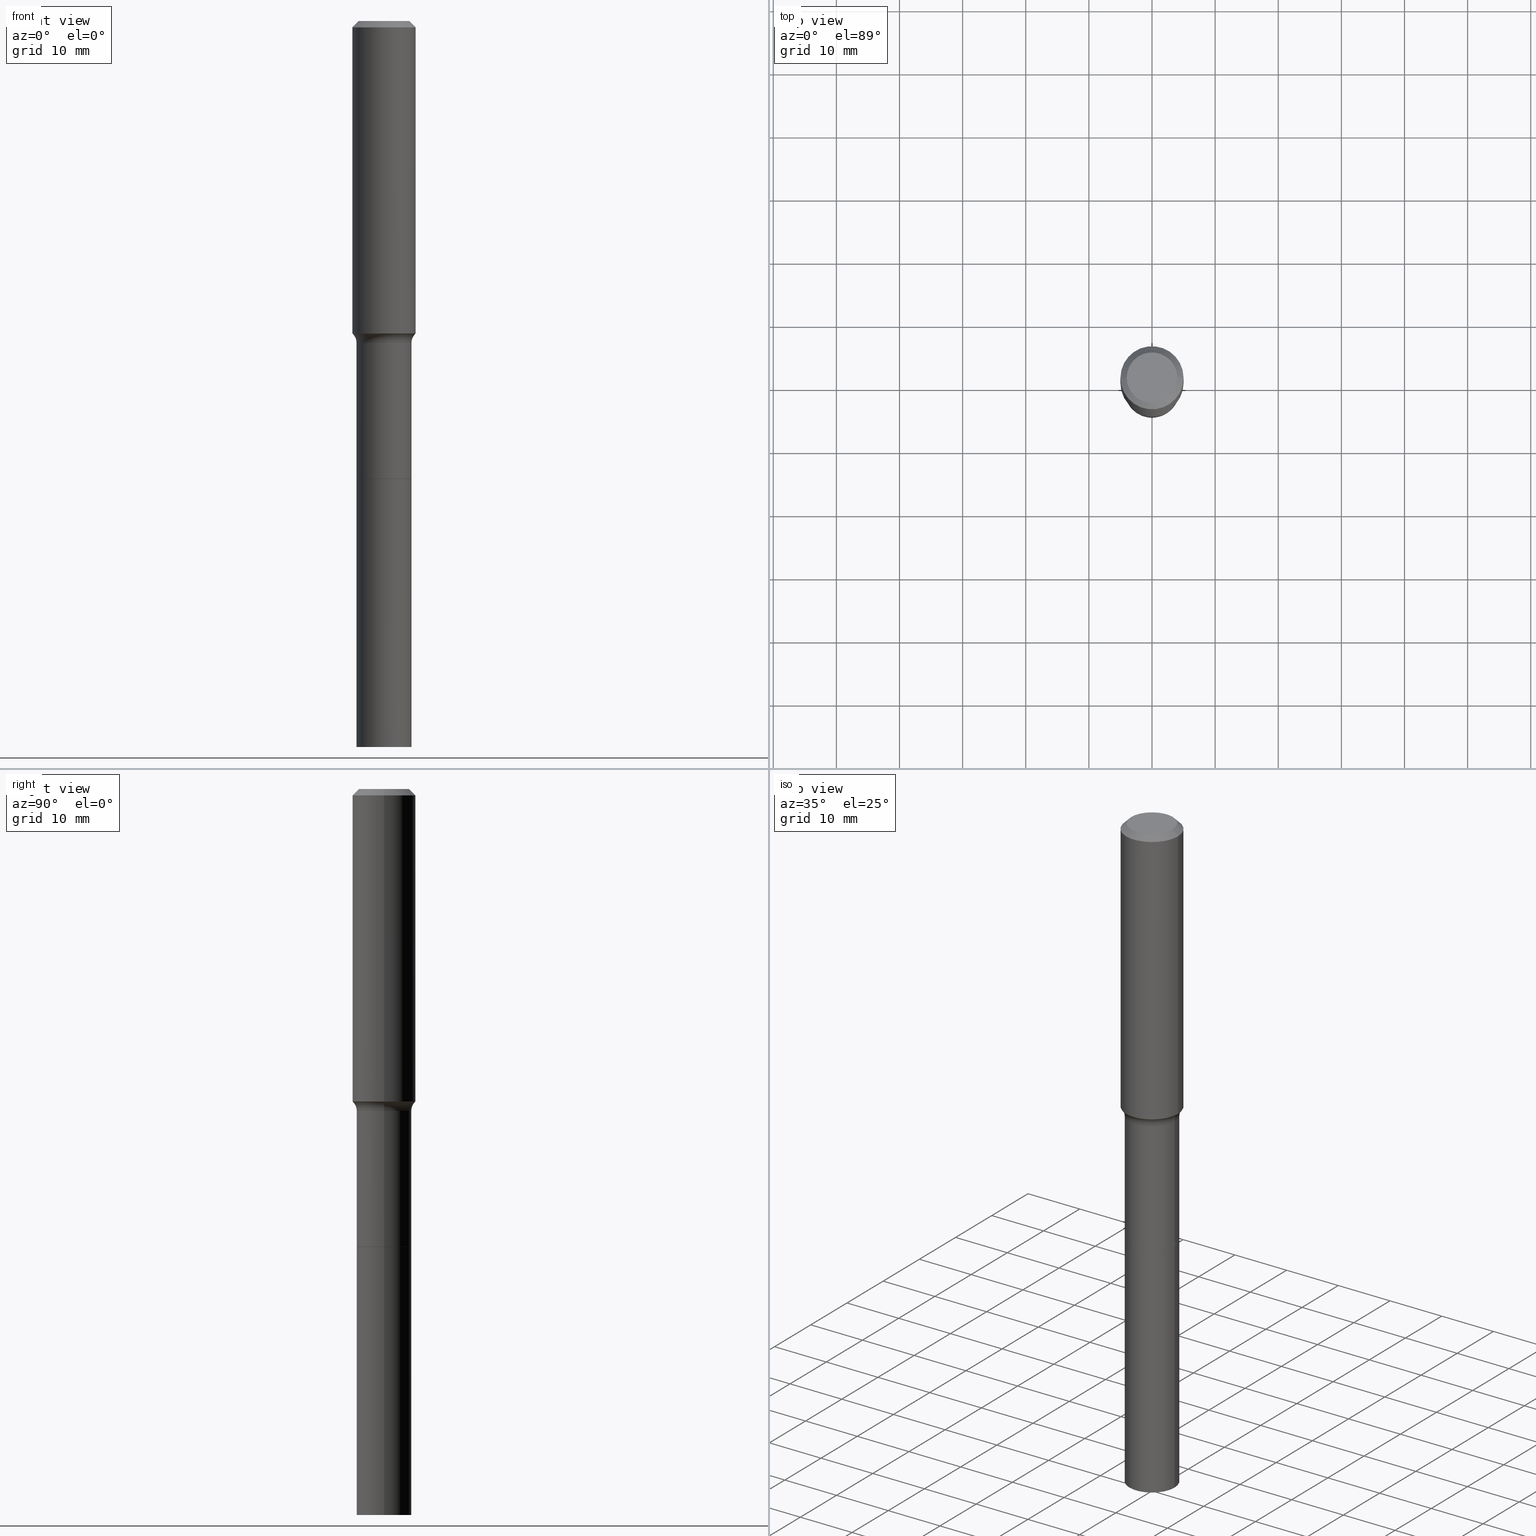
[diagram: canonical four-view strip — front | top / right | iso, engineering-drawing reading convention]
A machine part, canonical four-view strip (front | top / right | iso — engineering-drawing reading convention). The complete STEP part file that produces these views, byte-faithful:
ISO-10303-21;
HEADER;
FILE_DESCRIPTION (( 'STEP AP203' ),
    '1' );
FILE_NAME ('67875.STEP',
    '2025-04-01T15:31:56',
    ( '' ),
    ( '' ),
    'SwSTEP 2.0',
    'SolidWorks 2024',
    '' );
FILE_SCHEMA (( 'CONFIG_CONTROL_DESIGN' ));
ENDSEC;

DATA;
#1 = DIRECTION ( 'NONE',  ( -1.000000000000000000, 6.982962677686265922E-15, 0.000000000000000000 ) ) ;
#2 = VERTEX_POINT ( 'NONE', #33 ) ;
#3 = EDGE_CURVE ( 'NONE', #72, #116, #423, .T. ) ;
#4 = CARTESIAN_POINT ( 'NONE',  ( 0.1712500000000000133, -1.116086924774599207E-14, -2.854099999999999415 ) ) ;
#5 = DIRECTION ( 'NONE',  ( 0.7071067811868130271, -2.468850131085038979E-15, 0.7071067811862817853 ) ) ;
#6 = LINE ( 'NONE', #200, #403 ) ;
#7 = ADVANCED_BREP_SHAPE_REPRESENTATION ( '67875', ( #94, #86, #93 ), #299 ) ;
#8 = AXIS2_PLACEMENT_3D ( 'NONE', #188, #434, #1 ) ;
#9 = CARTESIAN_POINT ( 'NONE',  ( -0.1707500000000000129, -8.750881681377158273E-15, -2.854599999999999138 ) ) ;
#10 = ORIENTED_EDGE ( 'NONE', *, *, #194, .F. ) ;
#11 = LOCAL_TIME ( 11, 31, 56.00000000000000000, #212 ) ;
#12 = EDGE_CURVE ( 'NONE', #2, #353, #268, .T. ) ;
#13 = CYLINDRICAL_SURFACE ( 'NONE', #264, 0.1968500000000001082 ) ;
#14 = DIMENSIONAL_EXPONENTS ( 1.000000000000000000, 0.000000000000000000, 0.000000000000000000, 0.000000000000000000, 0.000000000000000000, 0.000000000000000000, 0.000000000000000000 ) ;
#15 = PERSON_AND_ORGANIZATION ( #405, #371 ) ;
#16 = EDGE_CURVE ( 'NONE', #332, #26, #285, .T. ) ;
#17 = CARTESIAN_POINT ( 'NONE',  ( -0.1927417038704664354, -5.449490996447267040E-15, -1.953040131194999862 ) ) ;
#18 = FACE_OUTER_BOUND ( 'NONE', #80, .T. ) ;
#19 = LINE ( 'NONE', #418, #84 ) ;
#20 = AXIS2_PLACEMENT_3D ( 'NONE', #486, #128, #281 ) ;
#21 = VERTEX_POINT ( 'NONE', #195 ) ;
#22 = EDGE_CURVE ( 'NONE', #40, #208, #443, .T. ) ;
#23 = CARTESIAN_POINT ( 'NONE',  ( 4.765324940588792328E-29, -6.803621073189836880E-15, -1.948634522974172167 ) ) ;
#24 = EDGE_LOOP ( 'NONE', ( #350, #378 ) ) ;
#25 = AXIS2_PLACEMENT_3D ( 'NONE', #30, #207, #203 ) ;
#26 = VERTEX_POINT ( 'NONE', #272 ) ;
#27 = EDGE_LOOP ( 'NONE', ( #10, #509, #504, #186 ) ) ;
#28 = AXIS2_PLACEMENT_3D ( 'NONE', #301, #292, #456 ) ;
#29 = EDGE_CURVE ( 'NONE', #21, #2, #319, .T. ) ;
#30 = CARTESIAN_POINT ( 'NONE',  ( 1.107210456688382298E-28, -1.580803090974622389E-14, -4.527599999999999625 ) ) ;
#31 = ORIENTED_EDGE ( 'NONE', *, *, #411, .F. ) ;
#32 = CARTESIAN_POINT ( 'NONE',  ( 4.909523175297278955E-29, -7.009497935861498019E-15, -2.007599999999999607 ) ) ;
#33 = CARTESIAN_POINT ( 'NONE',  ( 0.1968500000000002470, -8.178217276292379277E-15, -1.948634522974172167 ) ) ;
#34 = CARTESIAN_POINT ( 'NONE',  ( -0.1968500000000000250, 1.237136582792286225E-15, -0.03937000000000027283 ) ) ;
#35 = DIRECTION ( 'NONE',  ( -2.445468806185136597E-29, 3.491481338843145583E-15, 1.000000000000000000 ) ) ;
#36 = DIRECTION ( 'NONE',  ( -2.445468806185136597E-29, 3.491481338843145583E-15, 1.000000000000000000 ) ) ;
#37 = DIRECTION ( 'NONE',  ( -0.7071067811865451302, 2.468850131082231817E-15, -0.7071067811865499042 ) ) ;
#38 = EDGE_CURVE ( 'NONE', #208, #65, #391, .T. ) ;
#39 = DIRECTION ( 'NONE',  ( -1.000000000000000000, 6.982962677686265922E-15, -4.876176775795935793E-29 ) ) ;
#40 = VERTEX_POINT ( 'NONE', #163 ) ;
#41 = CYLINDRICAL_SURFACE ( 'NONE', #45, 0.1968500000000001082 ) ;
#42 = CARTESIAN_POINT ( 'NONE',  ( -0.1712500000000002909, -1.167060233481475528E-14, -4.527599999999999625 ) ) ;
#43 = CARTESIAN_POINT ( 'NONE',  ( 6.980835254136088366E-29, -9.966782629861639450E-15, -2.854599999999999138 ) ) ;
#44 = ORIENTED_EDGE ( 'NONE', *, *, #22, .F. ) ;
#45 = AXIS2_PLACEMENT_3D ( 'NONE', #236, #155, #232 ) ;
#46 = ORIENTED_EDGE ( 'NONE', *, *, #380, .F. ) ;
#47 = PERSON_AND_ORGANIZATION ( #405, #371 ) ;
#48 = VECTOR ( 'NONE', #365, 39.37007874015748143 ) ;
#49 = AXIS2_PLACEMENT_3D ( 'NONE', #157, #305, #115 ) ;
#50 = PERSON_AND_ORGANIZATION ( #405, #371 ) ;
#51 = EDGE_CURVE ( 'NONE', #258, #65, #485, .T. ) ;
#52 = VECTOR ( 'NONE', #257, 39.37007874015748143 ) ;
#53 = CC_DESIGN_SECURITY_CLASSIFICATION ( #290, ( #214 ) ) ;
#54 = CARTESIAN_POINT ( 'NONE',  ( 6.980835254136088366E-29, -9.966782629861639450E-15, -2.854599999999999138 ) ) ;
#55 = CARTESIAN_POINT ( 'NONE',  ( 0.1968500000000000250, -1.512055823412797189E-15, -0.03937000000000027283 ) ) ;
#56 = CONICAL_SURFACE ( 'NONE', #8, 0.1968500000000000250, 0.7853981633974449483 ) ;
#57 = EDGE_CURVE ( 'NONE', #26, #332, #333, .T. ) ;
#58 = EDGE_LOOP ( 'NONE', ( #505, #177, #303, #44 ) ) ;
#59 = APPLICATION_PROTOCOL_DEFINITION ( 'international standard', 'config_control_design', 1994, #101 ) ;
#60 = LINE ( 'NONE', #336, #506 ) ;
#61 = LOCAL_TIME ( 11, 31, 56.00000000000000000, #141 ) ;
#62 = EDGE_LOOP ( 'NONE', ( #326, #473, #374, #404 ) ) ;
#63 = DESIGN_CONTEXT ( 'detailed design', #351, 'design' ) ;
#64 = DIRECTION ( 'NONE',  ( 1.000000000000000000, -6.982962677686262766E-15, 0.000000000000000000 ) ) ;
#65 = VERTEX_POINT ( 'NONE', #158 ) ;
#66 = CARTESIAN_POINT ( 'NONE',  ( 4.776098718065099185E-29, -6.819003172079109959E-15, -1.953040131194999862 ) ) ;
#67 = AXIS2_PLACEMENT_3D ( 'NONE', #312, #480, #316 ) ;
#68 = EDGE_LOOP ( 'NONE', ( #385, #300 ) ) ;
#69 = FACE_OUTER_BOUND ( 'NONE', #230, .T. ) ;
#70 = EDGE_CURVE ( 'NONE', #76, #412, #476, .T. ) ;
#71 = CONICAL_SURFACE ( 'NONE', #98, 0.1707500000000000129, 0.7853981633978239785 ) ;
#72 = VERTEX_POINT ( 'NONE', #406 ) ;
#73 = LOCAL_TIME ( 11, 31, 56.00000000000000000, #206 ) ;
#74 =( CONVERSION_BASED_UNIT ( 'INCH', #270 ) LENGTH_UNIT ( ) NAMED_UNIT ( #14 ) );
#75 = DIRECTION ( 'NONE',  ( 2.438088387897960049E-29, -3.491481338843145188E-15, -1.000000000000000000 ) ) ;
#76 = VERTEX_POINT ( 'NONE', #42 ) ;
#77 = DIRECTION ( 'NONE',  ( -2.445468806185136597E-29, 3.491481338843145583E-15, 1.000000000000000000 ) ) ;
#78 = FACE_OUTER_BOUND ( 'NONE', #138, .T. ) ;
#79 = CC_DESIGN_PERSON_AND_ORGANIZATION_ASSIGNMENT ( #373, #180, ( #214 ) ) ;
#80 = EDGE_LOOP ( 'NONE', ( #419, #204, #282, #343 ) ) ;
#81 = SECURITY_CLASSIFICATION_LEVEL ( 'unclassified' ) ;
#82 = LINE ( 'NONE', #150, #253 ) ;
#83 = DIRECTION ( 'NONE',  ( 0.6819983600624930364, -2.208861293262419399E-15, 0.7313537016191755669 ) ) ;
#84 = VECTOR ( 'NONE', #145, 39.37007874015748143 ) ;
#85 = DIRECTION ( 'NONE',  ( 2.445468806185136597E-29, -3.491481338843145583E-15, -1.000000000000000000 ) ) ;
#86 = MANIFOLD_SOLID_BREP ( 'Body-Move/Copy2[2]', #366 ) ;
#87 = CARTESIAN_POINT ( 'NONE',  ( 6.980835254136088366E-29, -9.966782629861639450E-15, -2.854599999999999138 ) ) ;
#88 = DIRECTION ( 'NONE',  ( 1.000000000000000000, -6.982962677686262766E-15, 0.000000000000000000 ) ) ;
#89 = FACE_OUTER_BOUND ( 'NONE', #58, .T. ) ;
#90 = CARTESIAN_POINT ( 'NONE',  ( 9.627810689950950651E-31, -1.374596203102555808E-16, -0.03937000000000027283 ) ) ;
#91 = VECTOR ( 'NONE', #83, 39.37007874015748143 ) ;
#92 = CC_DESIGN_PERSON_AND_ORGANIZATION_ASSIGNMENT ( #190, #394, ( #290 ) ) ;
#93 = AXIS2_PLACEMENT_3D ( 'NONE', #139, #103, #221 ) ;
#94 = MANIFOLD_SOLID_BREP ( 'Body-Move/Copy2[1]', #359 ) ;
#95 = EDGE_CURVE ( 'NONE', #72, #353, #507, .T. ) ;
#96 = CIRCLE ( 'NONE', #67, 0.1712500000000002909 ) ;
#97 = MECHANICAL_CONTEXT ( 'NONE', #101, 'mechanical' ) ;
#98 = AXIS2_PLACEMENT_3D ( 'NONE', #210, #249, #165 ) ;
#99 =( NAMED_UNIT ( * ) SI_UNIT ( $, .STERADIAN. ) SOLID_ANGLE_UNIT ( ) );
#100 = ADVANCED_FACE ( 'NONE', ( #381 ), #56, .T. ) ;
#101 = APPLICATION_CONTEXT ( 'configuration controlled 3d designs of mechanical parts and assemblies' ) ;
#102 = ORIENTED_EDGE ( 'NONE', *, *, #420, .F. ) ;
#103 = DIRECTION ( 'NONE',  ( 0.000000000000000000, 0.000000000000000000, 1.000000000000000000 ) ) ;
#104 = FACE_OUTER_BOUND ( 'NONE', #24, .T. ) ;
#105 = ORIENTED_EDGE ( 'NONE', *, *, #51, .F. ) ;
#106 = DATE_AND_TIME ( #296, #61 ) ;
#107 = DIRECTION ( 'NONE',  ( -2.445468806185136597E-29, 3.491481338843145583E-15, 1.000000000000000000 ) ) ;
#108 = CIRCLE ( 'NONE', #134, 0.1927417038704664354 ) ;
#109 = ORIENTED_EDGE ( 'NONE', *, *, #360, .F. ) ;
#110 = DIRECTION ( 'NONE',  ( -6.982962677686266711E-15, -1.000000000000000000, 3.491481338843145583E-15 ) ) ;
#111 = ORIENTED_EDGE ( 'NONE', *, *, #327, .F. ) ;
#112 = ADVANCED_FACE ( 'NONE', ( #469 ), #479, .T. ) ;
#113 = DIRECTION ( 'NONE',  ( 1.000000000000000000, -6.982962677686265133E-15, 0.000000000000000000 ) ) ;
#114 = DIRECTION ( 'NONE',  ( 1.000000000000000000, -6.982962677686262766E-15, 0.000000000000000000 ) ) ;
#115 = DIRECTION ( 'NONE',  ( 1.000000000000000000, -6.982962677686265922E-15, 4.876176775795935793E-29 ) ) ;
#116 = VERTEX_POINT ( 'NONE', #352 ) ;
#117 = DIRECTION ( 'NONE',  ( -2.445468806185136597E-29, 3.491481338843145583E-15, 1.000000000000000000 ) ) ;
#118 = ORIENTED_EDGE ( 'NONE', *, *, #514, .F. ) ;
#119 = TOROIDAL_SURFACE ( 'NONE', #202, 0.2512499999999999178, 0.07999999999999994615 ) ;
#120 = DIRECTION ( 'NONE',  ( 1.000000000000000000, -6.982962677686266711E-15, 4.876176775795935793E-29 ) ) ;
#121 = EDGE_CURVE ( 'NONE', #223, #422, #367, .T. ) ;
#122 = CARTESIAN_POINT ( 'NONE',  ( -0.1712500000000001521, -8.749978194872468576E-15, -2.854599999999999582 ) ) ;
#123 = DIRECTION ( 'NONE',  ( -1.000000000000000000, 7.105427357601005014E-15, 0.000000000000000000 ) ) ;
#124 = CARTESIAN_POINT ( 'NONE',  ( 9.627810689950950651E-31, -1.374596203102555808E-16, -0.03937000000000027283 ) ) ;
#125 = DIRECTION ( 'NONE',  ( -2.445468806185136597E-29, 3.491481338843145583E-15, 1.000000000000000000 ) ) ;
#126 = DIRECTION ( 'NONE',  ( -0.7071067811868130271, 7.493145998871311837E-15, 0.7071067811862817853 ) ) ;
#127 = AXIS2_PLACEMENT_3D ( 'NONE', #124, #85, #244 ) ;
#128 = DIRECTION ( 'NONE',  ( -2.445468806185136597E-29, 3.491481338843145583E-15, 1.000000000000000000 ) ) ;
#129 = EDGE_LOOP ( 'NONE', ( #280, #501, #435, #295 ) ) ;
#130 = APPROVAL_DATE_TIME ( #169, #400 ) ;
#131 = ADVANCED_FACE ( 'NONE', ( #234 ), #508, .F. ) ;
#132 = CALENDAR_DATE ( 2025, 1, 4 ) ;
#133 = AXIS2_PLACEMENT_3D ( 'NONE', #397, #472, #392 ) ;
#134 = AXIS2_PLACEMENT_3D ( 'NONE', #66, #226, #113 ) ;
#135 = DIRECTION ( 'NONE',  ( -2.445468806185136597E-29, 3.491481338843145583E-15, 1.000000000000000000 ) ) ;
#136 = EDGE_CURVE ( 'NONE', #65, #116, #82, .T. ) ;
#137 = AXIS2_PLACEMENT_3D ( 'NONE', #179, #414, #331 ) ;
#138 = EDGE_LOOP ( 'NONE', ( #247, #235 ) ) ;
#139 = CARTESIAN_POINT ( 'NONE',  ( 0.000000000000000000, 0.000000000000000000, 0.000000000000000000 ) ) ;
#140 = EDGE_LOOP ( 'NONE', ( #470, #269, #335, #31 ) ) ;
#141 = COORDINATED_UNIVERSAL_TIME_OFFSET ( 5, 0, .BEHIND. ) ;
#142 = CARTESIAN_POINT ( 'NONE',  ( 6.980835254136090608E-29, -9.966782629861641028E-15, -2.854599999999999582 ) ) ;
#143 = AXIS2_PLACEMENT_3D ( 'NONE', #481, #240, #123 ) ;
#144 = ORIENTED_EDGE ( 'NONE', *, *, #284, .F. ) ;
#145 = DIRECTION ( 'NONE',  ( -2.445468806185136877E-29, 3.491481338843145188E-15, 1.000000000000000000 ) ) ;
#146 = CIRCLE ( 'NONE', #159, 0.1712500000000000133 ) ;
#147 = ADVANCED_FACE ( 'NONE', ( #431 ), #438, .T. ) ;
#148 = ORIENTED_EDGE ( 'NONE', *, *, #16, .T. ) ;
#149 = DIRECTION ( 'NONE',  ( -2.445468806185136597E-29, 3.491481338843145583E-15, 1.000000000000000000 ) ) ;
#150 = CARTESIAN_POINT ( 'NONE',  ( -0.1712499999999999856, 1.216804434989171466E-15, -8.423676342061525262E-30 ) ) ;
#151 = ORIENTED_EDGE ( 'NONE', *, *, #327, .T. ) ;
#152 = VECTOR ( 'NONE', #126, 39.37007874015748854 ) ;
#153 = DIRECTION ( 'NONE',  ( 1.000000000000000000, -6.982962677686265922E-15, 0.000000000000000000 ) ) ;
#154 = DIRECTION ( 'NONE',  ( -2.445468806185136597E-29, 3.491481338843145583E-15, 1.000000000000000000 ) ) ;
#155 = DIRECTION ( 'NONE',  ( -2.445468806185136597E-29, 3.491481338843145583E-15, 1.000000000000000000 ) ) ;
#156 = AXIS2_PLACEMENT_3D ( 'NONE', #256, #218, #372 ) ;
#157 = CARTESIAN_POINT ( 'NONE',  ( 1.335922122911125995E-28, -8.325708785128804196E-16, -2.854599999999999582 ) ) ;
#158 = CARTESIAN_POINT ( 'NONE',  ( -0.1712500000000000133, -7.270462977537686320E-15, -2.854099999999999415 ) ) ;
#159 = AXIS2_PLACEMENT_3D ( 'NONE', #192, #396, #114 ) ;
#160 = ORIENTED_EDGE ( 'NONE', *, *, #95, .F. ) ;
#161 = CARTESIAN_POINT ( 'NONE',  ( 0.1712500000000000133, -1.116261498841541436E-14, -2.854599999999999582 ) ) ;
#162 = DIRECTION ( 'NONE',  ( 1.000000000000000000, -6.982962677686266711E-15, 0.000000000000000000 ) ) ;
#163 = CARTESIAN_POINT ( 'NONE',  ( 0.1707500000000000129, -1.115912350707656977E-14, -2.854599999999999138 ) ) ;
#164 = VECTOR ( 'NONE', #201, 39.37007874015748143 ) ;
#165 = DIRECTION ( 'NONE',  ( 1.000000000000000000, -6.982962677686265922E-15, 0.000000000000000000 ) ) ;
#166 = ADVANCED_FACE ( 'NONE', ( #193 ), #448, .F. ) ;
#167 = CARTESIAN_POINT ( 'NONE',  ( 0.1707500000000000129, -1.115912350707656977E-14, -2.854599999999999138 ) ) ;
#168 = LOCAL_TIME ( 11, 31, 56.00000000000000000, #289 ) ;
#169 = DATE_AND_TIME ( #356, #11 ) ;
#170 = EDGE_CURVE ( 'NONE', #40, #258, #288, .T. ) ;
#171 = APPROVAL_ROLE ( '' ) ;
#172 = AXIS2_PLACEMENT_3D ( 'NONE', #450, #110, #421 ) ;
#173 = CARTESIAN_POINT ( 'NONE',  ( 0.000000000000000000, 0.000000000000000000, 0.000000000000000000 ) ) ;
#174 = ADVANCED_FACE ( 'NONE', ( #78 ), #345, .F. ) ;
#175 = DIRECTION ( 'NONE',  ( -2.445468806185136597E-29, 3.491481338843145583E-15, 1.000000000000000000 ) ) ;
#176 = CONICAL_SURFACE ( 'NONE', #127, 0.1968500000000000250, 0.7853981633974449483 ) ;
#177 = ORIENTED_EDGE ( 'NONE', *, *, #51, .T. ) ;
#178 = APPROVAL_STATUS ( 'not_yet_approved' ) ;
#179 = CARTESIAN_POINT ( 'NONE',  ( -4.713871149261283817E-47, 6.730158695841841775E-33, 1.927594061857935365E-18 ) ) ;
#180 = PERSON_AND_ORGANIZATION_ROLE ( 'creator' ) ;
#181 = ORIENTED_EDGE ( 'NONE', *, *, #22, .T. ) ;
#182 = CARTESIAN_POINT ( 'NONE',  ( -0.1968500000000002470, -5.404917697846077514E-15, -1.948634522974172167 ) ) ;
#183 = EDGE_CURVE ( 'NONE', #291, #398, #460, .T. ) ;
#184 = VECTOR ( 'NONE', #447, 39.37007874015748143 ) ;
#185 = AXIS2_PLACEMENT_3D ( 'NONE', #516, #35, #387 ) ;
#186 = ORIENTED_EDGE ( 'NONE', *, *, #348, .F. ) ;
#187 = PRODUCT ( '67875', '67875', '', ( #97 ) ) ;
#188 = CARTESIAN_POINT ( 'NONE',  ( 9.627810689950950651E-31, -1.374596203102555808E-16, -0.03937000000000027283 ) ) ;
#189 = AXIS2_PLACEMENT_3D ( 'NONE', #341, #510, #386 ) ;
#190 = PERSON_AND_ORGANIZATION ( #405, #371 ) ;
#191 = EDGE_LOOP ( 'NONE', ( #160, #329, #267, #46 ) ) ;
#192 = CARTESIAN_POINT ( 'NONE',  ( 6.979612519732997807E-29, -9.965036889192218735E-15, -2.854099999999999415 ) ) ;
#193 = FACE_OUTER_BOUND ( 'NONE', #129, .T. ) ;
#194 = EDGE_CURVE ( 'NONE', #72, #21, #334, .T. ) ;
#195 = CARTESIAN_POINT ( 'NONE',  ( 0.1927417038704663799, -8.164911296640236025E-15, -1.953040131194999862 ) ) ;
#196 = CARTESIAN_POINT ( 'NONE',  ( 4.909523175297278955E-29, -7.009497935861498019E-15, -2.007599999999999607 ) ) ;
#197 = DIRECTION ( 'NONE',  ( -2.445468806185136877E-29, 3.491481338843145188E-15, 1.000000000000000000 ) ) ;
#198 = CIRCLE ( 'NONE', #185, 0.1712500000000002909 ) ;
#199 = DIRECTION ( 'NONE',  ( 1.000000000000000000, -6.982962677686265133E-15, 0.000000000000000000 ) ) ;
#200 = CARTESIAN_POINT ( 'NONE',  ( 0.1968500000000000250, -1.487948651171581601E-15, -0.03937000000000027283 ) ) ;
#201 = DIRECTION ( 'NONE',  ( -0.6819983600624930364, 7.399397606724266066E-15, 0.7313537016191755669 ) ) ;
#202 = AXIS2_PLACEMENT_3D ( 'NONE', #196, #135, #213 ) ;
#203 = DIRECTION ( 'NONE',  ( -1.000000000000000000, 6.982962677686265922E-15, -4.876176775795935793E-29 ) ) ;
#204 = ORIENTED_EDGE ( 'NONE', *, *, #95, .T. ) ;
#205 = CARTESIAN_POINT ( 'NONE',  ( 0.000000000000000000, 0.000000000000000000, 0.000000000000000000 ) ) ;
#206 = COORDINATED_UNIVERSAL_TIME_OFFSET ( 5, 0, .BEHIND. ) ;
#207 = DIRECTION ( 'NONE',  ( 2.438088387897960049E-29, -3.491481338843145188E-15, -1.000000000000000000 ) ) ;
#208 = VERTEX_POINT ( 'NONE', #4 ) ;
#209 = EDGE_CURVE ( 'NONE', #76, #223, #198, .T. ) ;
#210 = CARTESIAN_POINT ( 'NONE',  ( 6.980835254136088366E-29, -9.966782629861639450E-15, -2.854599999999999138 ) ) ;
#211 = EDGE_LOOP ( 'NONE', ( #238, #430, #148, #498 ) ) ;
#212 = COORDINATED_UNIVERSAL_TIME_OFFSET ( 5, 0, .BEHIND. ) ;
#213 = DIRECTION ( 'NONE',  ( 1.000000000000000000, -6.982962677686268288E-15, 4.883557194083112901E-29 ) ) ;
#214 = PRODUCT_DEFINITION_FORMATION_WITH_SPECIFIED_SOURCE ( 'ANY', '', #187, .NOT_KNOWN. ) ;
#215 = EDGE_CURVE ( 'NONE', #116, #298, #493, .T. ) ;
#216 = DATE_AND_TIME ( #315, #73 ) ;
#217 = CIRCLE ( 'NONE', #495, 0.1712500000000000133 ) ;
#218 = DIRECTION ( 'NONE',  ( -2.445468806185136597E-29, 3.491481338843145583E-15, 1.000000000000000000 ) ) ;
#219 = AXIS2_PLACEMENT_3D ( 'NONE', #87, #246, #153 ) ;
#220 = ORIENTED_EDGE ( 'NONE', *, *, #380, .T. ) ;
#221 = DIRECTION ( 'NONE',  ( 1.000000000000000000, 0.000000000000000000, 0.000000000000000000 ) ) ;
#222 = CC_DESIGN_APPROVAL ( #427, ( #290 ) ) ;
#223 = VERTEX_POINT ( 'NONE', #475 ) ;
#224 = EDGE_CURVE ( 'NONE', #223, #76, #96, .T. ) ;
#225 = ORIENTED_EDGE ( 'NONE', *, *, #16, .F. ) ;
#226 = DIRECTION ( 'NONE',  ( -2.445468806185136597E-29, 3.491481338843145583E-15, 1.000000000000000000 ) ) ;
#227 = DIRECTION ( 'NONE',  ( 1.000000000000000000, -6.982962677686265922E-15, 0.000000000000000000 ) ) ;
#228 = AXIS2_PLACEMENT_3D ( 'NONE', #310, #355, #277 ) ;
#229 = PERSON_AND_ORGANIZATION_ROLE ( 'design_supplier' ) ;
#230 = EDGE_LOOP ( 'NONE', ( #402, #389, #225, #109 ) ) ;
#231 = CARTESIAN_POINT ( 'NONE',  ( 0.1712499999999999023, -8.205330294415270563E-15, -2.007599999999999607 ) ) ;
#232 = DIRECTION ( 'NONE',  ( 1.000000000000000000, -6.982962677686266711E-15, 4.876176775795935793E-29 ) ) ;
#233 = CIRCLE ( 'NONE', #241, 0.1712500000000000133 ) ;
#234 = FACE_OUTER_BOUND ( 'NONE', #395, .T. ) ;
#235 = ORIENTED_EDGE ( 'NONE', *, *, #245, .F. ) ;
#236 = CARTESIAN_POINT ( 'NONE',  ( 0.000000000000000000, 0.000000000000000000, 0.000000000000000000 ) ) ;
#237 = DIRECTION ( 'NONE',  ( 1.000000000000000000, -6.982962677686265133E-15, 0.000000000000000000 ) ) ;
#238 = ORIENTED_EDGE ( 'NONE', *, *, #183, .F. ) ;
#239 = DIRECTION ( 'NONE',  ( 1.000000000000000000, -6.982962677686268288E-15, 0.000000000000000000 ) ) ;
#240 = DIRECTION ( 'NONE',  ( 7.105427357601001859E-15, 1.000000000000000000, -3.491481338843145583E-15 ) ) ;
#241 = AXIS2_PLACEMENT_3D ( 'NONE', #376, #149, #379 ) ;
#242 = CARTESIAN_POINT ( 'NONE',  ( 4.776098718065099185E-29, -6.819003172079109959E-15, -1.953040131194999862 ) ) ;
#243 = CARTESIAN_POINT ( 'NONE',  ( -0.1707500000000000129, -8.753530908551268685E-15, -2.854599999999999138 ) ) ;
#244 = DIRECTION ( 'NONE',  ( -1.000000000000000000, 6.982962677686265922E-15, 0.000000000000000000 ) ) ;
#245 = EDGE_CURVE ( 'NONE', #258, #40, #260, .T. ) ;
#246 = DIRECTION ( 'NONE',  ( -2.445468806185136597E-29, 3.491481338843145583E-15, 1.000000000000000000 ) ) ;
#247 = ORIENTED_EDGE ( 'NONE', *, *, #170, .F. ) ;
#248 = DATE_TIME_ROLE ( 'creation_date' ) ;
#249 = DIRECTION ( 'NONE',  ( -2.445468806185136597E-29, 3.491481338843145583E-15, 1.000000000000000000 ) ) ;
#250 = ORIENTED_EDGE ( 'NONE', *, *, #461, .T. ) ;
#251 = DATE_TIME_ROLE ( 'classification_date' ) ;
#252 = ADVANCED_FACE ( 'NONE', ( #89 ), #71, .T. ) ;
#253 = VECTOR ( 'NONE', #197, 39.37007874015748143 ) ;
#254 = AXIS2_PLACEMENT_3D ( 'NONE', #43, #354, #401 ) ;
#255 = VECTOR ( 'NONE', #37, 39.37007874015748143 ) ;
#256 = CARTESIAN_POINT ( 'NONE',  ( 4.776098718065099185E-29, -6.819003172079109959E-15, -1.953040131194999862 ) ) ;
#257 = DIRECTION ( 'NONE',  ( -2.445468806185136877E-29, 3.491481338843145188E-15, 1.000000000000000000 ) ) ;
#258 = VERTEX_POINT ( 'NONE', #9 ) ;
#259 = PLANE ( 'NONE',  #137 ) ;
#260 = CIRCLE ( 'NONE', #254, 0.1707500000000000129 ) ;
#261 = APPROVAL ( #178, 'UNSPECIFIED' ) ;
#262 = ORIENTED_EDGE ( 'NONE', *, *, #287, .F. ) ;
#263 = DIRECTION ( 'NONE',  ( -2.445468806185136597E-29, 3.491481338843145583E-15, 1.000000000000000000 ) ) ;
#264 = AXIS2_PLACEMENT_3D ( 'NONE', #173, #266, #364 ) ;
#265 = ORIENTED_EDGE ( 'NONE', *, *, #411, .T. ) ;
#266 = DIRECTION ( 'NONE',  ( -2.445468806185136597E-29, 3.491481338843145583E-15, 1.000000000000000000 ) ) ;
#267 = ORIENTED_EDGE ( 'NONE', *, *, #29, .T. ) ;
#268 = CIRCLE ( 'NONE', #491, 0.1968500000000002470 ) ;
#269 = ORIENTED_EDGE ( 'NONE', *, *, #209, .T. ) ;
#270 = LENGTH_MEASURE_WITH_UNIT ( LENGTH_MEASURE( 0.02539999999999999897 ), #474 );
#271 = ADVANCED_FACE ( 'NONE', ( #442 ), #318, .T. ) ;
#272 = CARTESIAN_POINT ( 'NONE',  ( -0.1968500000000000250, -2.071836971406287654E-15, -0.03937000000000027283 ) ) ;
#273 = CYLINDRICAL_SURFACE ( 'NONE', #497, 0.1712500000000001521 ) ;
#274 = ORIENTED_EDGE ( 'NONE', *, *, #490, .T. ) ;
#275 = DIRECTION ( 'NONE',  ( -2.445468806185136597E-29, 3.491481338843145583E-15, 1.000000000000000000 ) ) ;
#276 = ADVANCED_FACE ( 'NONE', ( #18 ), #437, .T. ) ;
#277 = DIRECTION ( 'NONE',  ( 1.000000000000000000, -6.982962677686265922E-15, 0.000000000000000000 ) ) ;
#278 = CIRCLE ( 'NONE', #189, 0.1712499999999999023 ) ;
#279 = DIRECTION ( 'NONE',  ( 1.000000000000000000, -6.982962677686268288E-15, 4.883557194083112901E-29 ) ) ;
#280 = ORIENTED_EDGE ( 'NONE', *, *, #3, .F. ) ;
#281 = DIRECTION ( 'NONE',  ( 1.000000000000000000, -6.982962677686266711E-15, 4.876176775795935793E-29 ) ) ;
#282 = ORIENTED_EDGE ( 'NONE', *, *, #12, .F. ) ;
#283 = CC_DESIGN_DATE_AND_TIME_ASSIGNMENT ( #216, #251, ( #290 ) ) ;
#284 = EDGE_CURVE ( 'NONE', #398, #291, #349, .T. ) ;
#285 = CIRCLE ( 'NONE', #228, 0.1968500000000000250 ) ;
#286 = LOCAL_TIME ( 11, 31, 56.00000000000000000, #488 ) ;
#287 = EDGE_CURVE ( 'NONE', #353, #26, #60, .T. ) ;
#288 = CIRCLE ( 'NONE', #219, 0.1707500000000000129 ) ;
#289 = COORDINATED_UNIVERSAL_TIME_OFFSET ( 5, 0, .BEHIND. ) ;
#290 = SECURITY_CLASSIFICATION ( '', '', #81 ) ;
#291 = VERTEX_POINT ( 'NONE', #375 ) ;
#292 = DIRECTION ( 'NONE',  ( -2.445468806185136597E-29, 3.491481338843145583E-15, 1.000000000000000000 ) ) ;
#293 = CARTESIAN_POINT ( 'NONE',  ( -0.1574800000000000089, 1.168406772637159618E-15, 3.855188123707939751E-18 ) ) ;
#294 = EDGE_CURVE ( 'NONE', #21, #72, #108, .T. ) ;
#295 = ORIENTED_EDGE ( 'NONE', *, *, #514, .T. ) ;
#296 = CALENDAR_DATE ( 2025, 1, 4 ) ;
#297 = AXIS2_PLACEMENT_3D ( 'NONE', #512, #77, #239 ) ;
#298 = VERTEX_POINT ( 'NONE', #231 ) ;
#299 =( GEOMETRIC_REPRESENTATION_CONTEXT ( 3 ) GLOBAL_UNCERTAINTY_ASSIGNED_CONTEXT ( ( #441 ) ) GLOBAL_UNIT_ASSIGNED_CONTEXT ( ( #74, #478, #99 ) ) REPRESENTATION_CONTEXT ( 'NONE', 'WORKASPACE' ) );
#300 = ORIENTED_EDGE ( 'NONE', *, *, #209, .F. ) ;
#301 = CARTESIAN_POINT ( 'NONE',  ( -9.427742298522567634E-47, 1.346031739168368355E-32, 3.855188123715870730E-18 ) ) ;
#302 = DIRECTION ( 'NONE',  ( 0.7071067811865451302, -7.319954787623248157E-15, -0.7071067811865499042 ) ) ;
#303 = ORIENTED_EDGE ( 'NONE', *, *, #38, .F. ) ;
#304 = CC_DESIGN_PERSON_AND_ORGANIZATION_ASSIGNMENT ( #377, #229, ( #214 ) ) ;
#305 = DIRECTION ( 'NONE',  ( -2.438088387897960049E-29, 3.491481338843145188E-15, 1.000000000000000000 ) ) ;
#306 = EDGE_LOOP ( 'NONE', ( #102, #144, #250, #455 ) ) ;
#307 = CARTESIAN_POINT ( 'NONE',  ( -0.1712500000000000133, -1.167060233481475843E-14, -2.854599999999999582 ) ) ;
#308 = AXIS2_PLACEMENT_3D ( 'NONE', #54, #500, #227 ) ;
#309 = DIRECTION ( 'NONE',  ( -2.445468806185136597E-29, 3.491481338843145583E-15, 1.000000000000000000 ) ) ;
#310 = CARTESIAN_POINT ( 'NONE',  ( 9.627810689950950651E-31, -1.374596203102555808E-16, -0.03937000000000027283 ) ) ;
#311 = ADVANCED_FACE ( 'NONE', ( #477 ), #119, .F. ) ;
#312 = CARTESIAN_POINT ( 'NONE',  ( 1.107210456688382298E-28, -1.580803090974622389E-14, -4.527599999999999625 ) ) ;
#313 = ORIENTED_EDGE ( 'NONE', *, *, #490, .F. ) ;
#314 = DIRECTION ( 'NONE',  ( -2.445468806185136597E-29, 3.491481338843145583E-15, 1.000000000000000000 ) ) ;
#315 = CALENDAR_DATE ( 2025, 1, 4 ) ;
#316 = DIRECTION ( 'NONE',  ( 1.000000000000000000, -6.982962677686262766E-15, 0.000000000000000000 ) ) ;
#317 = CARTESIAN_POINT ( 'NONE',  ( 4.765324940588792328E-29, -6.803621073189836880E-15, -1.948634522974172167 ) ) ;
#318 = CYLINDRICAL_SURFACE ( 'NONE', #20, 0.1712499999999999856 ) ;
#319 = LINE ( 'NONE', #517, #91 ) ;
#320 = ADVANCED_FACE ( 'NONE', ( #511 ), #13, .T. ) ;
#321 = CIRCLE ( 'NONE', #361, 0.1968500000000002470 ) ;
#322 = EDGE_CURVE ( 'NONE', #422, #412, #233, .T. ) ;
#323 = AXIS2_PLACEMENT_3D ( 'NONE', #342, #125, #279 ) ;
#324 = APPLICATION_PROTOCOL_DEFINITION ( 'international standard', 'config_control_design', 1994, #351 ) ;
#325 = DATE_AND_TIME ( #132, #286 ) ;
#326 = ORIENTED_EDGE ( 'NONE', *, *, #224, .T. ) ;
#327 = EDGE_CURVE ( 'NONE', #208, #298, #454, .T. ) ;
#328 = DIRECTION ( 'NONE',  ( 1.000000000000000000, -6.982962677686265133E-15, 0.000000000000000000 ) ) ;
#329 = ORIENTED_EDGE ( 'NONE', *, *, #194, .T. ) ;
#330 = APPROVAL_ROLE ( '' ) ;
#331 = DIRECTION ( 'NONE',  ( -1.000000000000000000, 6.982962677686265922E-15, -4.876176775795935793E-29 ) ) ;
#332 = VERTEX_POINT ( 'NONE', #55 ) ;
#333 = CIRCLE ( 'NONE', #503, 0.1968500000000000250 ) ;
#334 = CIRCLE ( 'NONE', #413, 0.1927417038704664354 ) ;
#335 = ORIENTED_EDGE ( 'NONE', *, *, #121, .T. ) ;
#336 = CARTESIAN_POINT ( 'NONE',  ( -0.1968500000000001082, 1.398703375343757985E-15, -9.682923725166787881E-30 ) ) ;
#337 = PRODUCT_DEFINITION_SHAPE ( 'NONE', 'NONE',  #339 ) ;
#338 = CONICAL_SURFACE ( 'NONE', #308, 0.1707500000000000129, 0.7853981633978239785 ) ;
#339 = PRODUCT_DEFINITION ( 'UNKNOWN', '', #214, #63 ) ;
#340 = EDGE_LOOP ( 'NONE', ( #466, #513, #118, #111 ) ) ;
#341 = CARTESIAN_POINT ( 'NONE',  ( 4.909523175297278955E-29, -7.009497935861498019E-15, -2.007599999999999607 ) ) ;
#342 = CARTESIAN_POINT ( 'NONE',  ( 4.909523175297278955E-29, -7.009497935861498019E-15, -2.007599999999999607 ) ) ;
#343 = ORIENTED_EDGE ( 'NONE', *, *, #29, .F. ) ;
#344 = FACE_OUTER_BOUND ( 'NONE', #340, .T. ) ;
#345 = PLANE ( 'NONE',  #49 ) ;
#346 = DIRECTION ( 'NONE',  ( 1.000000000000000000, -6.982962677686265922E-15, 0.000000000000000000 ) ) ;
#347 = FACE_OUTER_BOUND ( 'NONE', #62, .T. ) ;
#348 = EDGE_CURVE ( 'NONE', #21, #298, #408, .T. ) ;
#349 = CIRCLE ( 'NONE', #28, 0.1574800000000000089 ) ;
#350 = ORIENTED_EDGE ( 'NONE', *, *, #284, .T. ) ;
#351 = APPLICATION_CONTEXT ( 'configuration controlled 3d designs of mechanical parts and assemblies' ) ;
#352 = CARTESIAN_POINT ( 'NONE',  ( -0.1712499999999999023, -7.270462977537686320E-15, -2.007599999999999607 ) ) ;
#353 = VERTEX_POINT ( 'NONE', #182 ) ;
#354 = DIRECTION ( 'NONE',  ( -2.445468806185136597E-29, 3.491481338843145583E-15, 1.000000000000000000 ) ) ;
#355 = DIRECTION ( 'NONE',  ( -2.445468806185136597E-29, 3.491481338843145583E-15, 1.000000000000000000 ) ) ;
#356 = CALENDAR_DATE ( 2025, 1, 4 ) ;
#357 = ADVANCED_FACE ( 'NONE', ( #410 ), #463, .T. ) ;
#358 = DATE_AND_TIME ( #449, #168 ) ;
#359 = CLOSED_SHELL ( 'NONE', ( #484, #147, #112, #131 ) ) ;
#360 = EDGE_CURVE ( 'NONE', #2, #332, #19, .T. ) ;
#361 = AXIS2_PLACEMENT_3D ( 'NONE', #23, #175, #328 ) ;
#362 = PERSON_AND_ORGANIZATION_ROLE ( 'creator' ) ;
#363 = PERSON_AND_ORGANIZATION ( #405, #371 ) ;
#364 = DIRECTION ( 'NONE',  ( 1.000000000000000000, -6.982962677686266711E-15, 4.876176775795935793E-29 ) ) ;
#365 = DIRECTION ( 'NONE',  ( -2.445468806185136877E-29, 3.491481338843145188E-15, 1.000000000000000000 ) ) ;
#366 = CLOSED_SHELL ( 'NONE', ( #252, #453, #502, #276, #311, #429, #271, #166, #357, #320, #100, #407, #174, #388 ) ) ;
#367 = LINE ( 'NONE', #465, #48 ) ;
#368 = ORIENTED_EDGE ( 'NONE', *, *, #57, .F. ) ;
#369 = PERSON_AND_ORGANIZATION_ROLE ( 'design_owner' ) ;
#370 = DIRECTION ( 'NONE',  ( -2.445468806185136877E-29, 3.491481338843145188E-15, 1.000000000000000000 ) ) ;
#371 = ORGANIZATION ( 'UNSPECIFIED', 'UNSPECIFIED', '' ) ;
#372 = DIRECTION ( 'NONE',  ( 1.000000000000000000, -6.982962677686265133E-15, 0.000000000000000000 ) ) ;
#373 = PERSON_AND_ORGANIZATION ( #405, #371 ) ;
#374 = ORIENTED_EDGE ( 'NONE', *, *, #322, .F. ) ;
#375 = CARTESIAN_POINT ( 'NONE',  ( 0.1574800000000000089, -1.284169937930321189E-15, 3.855188123724205385E-18 ) ) ;
#376 = CARTESIAN_POINT ( 'NONE',  ( 6.980835254136090608E-29, -9.966782629861641028E-15, -2.854599999999999582 ) ) ;
#377 = PERSON_AND_ORGANIZATION ( #405, #371 ) ;
#378 = ORIENTED_EDGE ( 'NONE', *, *, #183, .T. ) ;
#379 = DIRECTION ( 'NONE',  ( 1.000000000000000000, -6.982962677686262766E-15, 0.000000000000000000 ) ) ;
#380 = EDGE_CURVE ( 'NONE', #353, #2, #321, .T. ) ;
#381 = FACE_OUTER_BOUND ( 'NONE', #306, .T. ) ;
#382 = EDGE_LOOP ( 'NONE', ( #489, #274, #151, #439 ) ) ;
#383 = CC_DESIGN_APPROVAL ( #261, ( #339 ) ) ;
#384 = CARTESIAN_POINT ( 'NONE',  ( 6.980835254136090608E-29, -9.966782629861641028E-15, -2.854599999999999582 ) ) ;
#385 = ORIENTED_EDGE ( 'NONE', *, *, #224, .F. ) ;
#386 = DIRECTION ( 'NONE',  ( 1.000000000000000000, -6.982962677686266711E-15, 0.000000000000000000 ) ) ;
#387 = DIRECTION ( 'NONE',  ( 1.000000000000000000, -6.982962677686262766E-15, 0.000000000000000000 ) ) ;
#388 = ADVANCED_FACE ( 'NONE', ( #409 ), #338, .T. ) ;
#389 = ORIENTED_EDGE ( 'NONE', *, *, #287, .T. ) ;
#390 = CYLINDRICAL_SURFACE ( 'NONE', #444, 0.1712499999999999856 ) ;
#391 = CIRCLE ( 'NONE', #458, 0.1712500000000000133 ) ;
#392 = DIRECTION ( 'NONE',  ( 1.000000000000000000, -6.982962677686265922E-15, 4.876223630392693006E-29 ) ) ;
#393 = CARTESIAN_POINT ( 'NONE',  ( 6.979612519732997807E-29, -9.965036889192218735E-15, -2.854099999999999415 ) ) ;
#394 = PERSON_AND_ORGANIZATION_ROLE ( 'classification_officer' ) ;
#395 = EDGE_LOOP ( 'NONE', ( #426, #265 ) ) ;
#396 = DIRECTION ( 'NONE',  ( -2.445468806185136597E-29, 3.491481338843145583E-15, 1.000000000000000000 ) ) ;
#397 = CARTESIAN_POINT ( 'NONE',  ( -9.427742298522567634E-47, 1.346031739168368355E-32, 3.855188123715870730E-18 ) ) ;
#398 = VERTEX_POINT ( 'NONE', #293 ) ;
#399 = APPROVAL_ROLE ( '' ) ;
#400 = APPROVAL ( #494, 'UNSPECIFIED' ) ;
#401 = DIRECTION ( 'NONE',  ( 1.000000000000000000, -6.982962677686265922E-15, 0.000000000000000000 ) ) ;
#402 = ORIENTED_EDGE ( 'NONE', *, *, #12, .T. ) ;
#403 = VECTOR ( 'NONE', #302, 39.37007874015748143 ) ;
#404 = ORIENTED_EDGE ( 'NONE', *, *, #121, .F. ) ;
#405 = PERSON ( 'UNSPECIFIED', 'UNSPECIFIED', 'UNSPECIFIED', ('UNSPECIFIED'), ('UNSPECIFIED'), ('UNSPECIFIED') ) ;
#406 = CARTESIAN_POINT ( 'NONE',  ( -0.1927417038704663799, -5.449490996447267829E-15, -1.953040131194999862 ) ) ;
#407 = ADVANCED_FACE ( 'NONE', ( #104 ), #259, .F. ) ;
#408 = CIRCLE ( 'NONE', #172, 0.07999999999999993228 ) ;
#409 = FACE_OUTER_BOUND ( 'NONE', #415, .T. ) ;
#410 = FACE_OUTER_BOUND ( 'NONE', #191, .T. ) ;
#411 = EDGE_CURVE ( 'NONE', #412, #422, #217, .T. ) ;
#412 = VERTEX_POINT ( 'NONE', #307 ) ;
#413 = AXIS2_PLACEMENT_3D ( 'NONE', #242, #117, #237 ) ;
#414 = DIRECTION ( 'NONE',  ( 2.438088387897960049E-29, -3.491481338843145188E-15, -1.000000000000000000 ) ) ;
#415 = EDGE_LOOP ( 'NONE', ( #105, #462, #181, #313 ) ) ;
#416 = APPROVAL_DATE_TIME ( #106, #261 ) ;
#417 = AXIS2_PLACEMENT_3D ( 'NONE', #467, #263, #499 ) ;
#418 = CARTESIAN_POINT ( 'NONE',  ( 0.1968500000000001082, -1.374596203102542397E-15, 9.598753983154305062E-30 ) ) ;
#419 = ORIENTED_EDGE ( 'NONE', *, *, #294, .T. ) ;
#420 = EDGE_CURVE ( 'NONE', #291, #332, #6, .T. ) ;
#421 = DIRECTION ( 'NONE',  ( 1.000000000000000000, -6.982962677686265133E-15, 0.000000000000000000 ) ) ;
#422 = VERTEX_POINT ( 'NONE', #161 ) ;
#423 = CIRCLE ( 'NONE', #143, 0.07999999999999993228 ) ;
#424 = PRODUCT_RELATED_PRODUCT_CATEGORY ( 'detail', '', ( #187 ) ) ;
#425 = FACE_OUTER_BOUND ( 'NONE', #211, .T. ) ;
#426 = ORIENTED_EDGE ( 'NONE', *, *, #322, .T. ) ;
#427 = APPROVAL ( #492, 'UNSPECIFIED' ) ;
#428 = APPROVAL_PERSON_ORGANIZATION ( #363, #261, #330 ) ;
#429 = ADVANCED_FACE ( 'NONE', ( #344 ), #390, .T. ) ;
#430 = ORIENTED_EDGE ( 'NONE', *, *, #420, .T. ) ;
#431 = FACE_OUTER_BOUND ( 'NONE', #68, .T. ) ;
#432 = EDGE_LOOP ( 'NONE', ( #262, #220, #459, #368 ) ) ;
#433 = VECTOR ( 'NONE', #5, 39.37007874015748854 ) ;
#434 = DIRECTION ( 'NONE',  ( 2.445468806185136597E-29, -3.491481338843145583E-15, -1.000000000000000000 ) ) ;
#435 = ORIENTED_EDGE ( 'NONE', *, *, #348, .T. ) ;
#436 = DIRECTION ( 'NONE',  ( 1.000000000000000000, -6.982962677686268288E-15, 0.000000000000000000 ) ) ;
#437 = CONICAL_SURFACE ( 'NONE', #417, 0.1927417038704664354, 0.7504915783575542010 ) ;
#438 = PLANE ( 'NONE',  #25 ) ;
#439 = ORIENTED_EDGE ( 'NONE', *, *, #215, .F. ) ;
#440 = CC_DESIGN_PERSON_AND_ORGANIZATION_ASSIGNMENT ( #50, #369, ( #187 ) ) ;
#441 = UNCERTAINTY_MEASURE_WITH_UNIT (LENGTH_MEASURE( 1.000000000000000082E-05 ), #74, 'distance_accuracy_value', 'NONE');
#442 = FACE_OUTER_BOUND ( 'NONE', #382, .T. ) ;
#443 = LINE ( 'NONE', #167, #433 ) ;
#444 = AXIS2_PLACEMENT_3D ( 'NONE', #205, #314, #120 ) ;
#445 = CC_DESIGN_DATE_AND_TIME_ASSIGNMENT ( #358, #248, ( #339 ) ) ;
#446 = CC_DESIGN_APPROVAL ( #400, ( #214 ) ) ;
#447 = DIRECTION ( 'NONE',  ( -2.445468806185136877E-29, 3.491481338843145188E-15, 1.000000000000000000 ) ) ;
#448 = TOROIDAL_SURFACE ( 'NONE', #323, 0.2512499999999999178, 0.07999999999999994615 ) ;
#449 = CALENDAR_DATE ( 2025, 1, 4 ) ;
#450 = CARTESIAN_POINT ( 'NONE',  ( 0.2512499999999999178, -8.763967308630172215E-15, -2.007599999999999607 ) ) ;
#451 = PERSON_AND_ORGANIZATION ( #405, #371 ) ;
#452 = APPROVAL_PERSON_ORGANIZATION ( #47, #400, #399 ) ;
#453 = ADVANCED_FACE ( 'NONE', ( #425 ), #176, .T. ) ;
#454 = LINE ( 'NONE', #457, #52 ) ;
#455 = ORIENTED_EDGE ( 'NONE', *, *, #57, .T. ) ;
#456 = DIRECTION ( 'NONE',  ( 1.000000000000000000, -6.982962677686265922E-15, 4.876223630392693006E-29 ) ) ;
#457 = CARTESIAN_POINT ( 'NONE',  ( 0.1712499999999999856, -1.195832358553773135E-15, 8.350452728550539064E-30 ) ) ;
#458 = AXIS2_PLACEMENT_3D ( 'NONE', #393, #36, #88 ) ;
#459 = ORIENTED_EDGE ( 'NONE', *, *, #360, .T. ) ;
#460 = CIRCLE ( 'NONE', #133, 0.1574800000000000089 ) ;
#461 = EDGE_CURVE ( 'NONE', #398, #26, #468, .T. ) ;
#462 = ORIENTED_EDGE ( 'NONE', *, *, #245, .T. ) ;
#463 = CONICAL_SURFACE ( 'NONE', #156, 0.1927417038704664354, 0.7504915783575542010 ) ;
#464 = SHAPE_DEFINITION_REPRESENTATION ( #337, #7 ) ;
#465 = CARTESIAN_POINT ( 'NONE',  ( 0.1712500000000001521, -1.116261498841541594E-14, -2.854599999999999582 ) ) ;
#466 = ORIENTED_EDGE ( 'NONE', *, *, #38, .T. ) ;
#467 = CARTESIAN_POINT ( 'NONE',  ( 4.776098718065099185E-29, -6.819003172079109959E-15, -1.953040131194999862 ) ) ;
#468 = LINE ( 'NONE', #34, #255 ) ;
#469 = FACE_OUTER_BOUND ( 'NONE', #140, .T. ) ;
#470 = ORIENTED_EDGE ( 'NONE', *, *, #70, .F. ) ;
#471 = APPROVAL_DATE_TIME ( #325, #427 ) ;
#472 = DIRECTION ( 'NONE',  ( -2.445468806185136597E-29, 3.491481338843145583E-15, 1.000000000000000000 ) ) ;
#473 = ORIENTED_EDGE ( 'NONE', *, *, #70, .T. ) ;
#474 =( LENGTH_UNIT ( ) NAMED_UNIT ( * ) SI_UNIT ( $, .METRE. ) );
#475 = CARTESIAN_POINT ( 'NONE',  ( 0.1712500000000002909, -1.700386326829999880E-14, -4.527599999999999625 ) ) ;
#476 = LINE ( 'NONE', #122, #184 ) ;
#477 = FACE_OUTER_BOUND ( 'NONE', #27, .T. ) ;
#478 =( NAMED_UNIT ( * ) PLANE_ANGLE_UNIT ( ) SI_UNIT ( $, .RADIAN. ) );
#479 = CYLINDRICAL_SURFACE ( 'NONE', #297, 0.1712500000000001521 ) ;
#480 = DIRECTION ( 'NONE',  ( -2.445468806185136597E-29, 3.491481338843145583E-15, 1.000000000000000000 ) ) ;
#481 = CARTESIAN_POINT ( 'NONE',  ( -0.2512499999999999178, -5.224259312264246492E-15, -2.007599999999999607 ) ) ;
#482 = AXIS2_PLACEMENT_3D ( 'NONE', #384, #75, #39 ) ;
#483 = AXIS2_PLACEMENT_3D ( 'NONE', #32, #309, #162 ) ;
#484 = ADVANCED_FACE ( 'NONE', ( #347 ), #273, .T. ) ;
#485 = LINE ( 'NONE', #243, #152 ) ;
#486 = CARTESIAN_POINT ( 'NONE',  ( 0.000000000000000000, 0.000000000000000000, 0.000000000000000000 ) ) ;
#487 = DIRECTION ( 'NONE',  ( -2.445468806185136597E-29, 3.491481338843145583E-15, 1.000000000000000000 ) ) ;
#488 = COORDINATED_UNIVERSAL_TIME_OFFSET ( 5, 0, .BEHIND. ) ;
#489 = ORIENTED_EDGE ( 'NONE', *, *, #136, .F. ) ;
#490 = EDGE_CURVE ( 'NONE', #65, #208, #146, .T. ) ;
#491 = AXIS2_PLACEMENT_3D ( 'NONE', #317, #487, #199 ) ;
#492 = APPROVAL_STATUS ( 'not_yet_approved' ) ;
#493 = CIRCLE ( 'NONE', #483, 0.1712499999999999023 ) ;
#494 = APPROVAL_STATUS ( 'not_yet_approved' ) ;
#495 = AXIS2_PLACEMENT_3D ( 'NONE', #142, #107, #64 ) ;
#496 = CC_DESIGN_PERSON_AND_ORGANIZATION_ASSIGNMENT ( #15, #362, ( #339 ) ) ;
#497 = AXIS2_PLACEMENT_3D ( 'NONE', #515, #275, #436 ) ;
#498 = ORIENTED_EDGE ( 'NONE', *, *, #461, .F. ) ;
#499 = DIRECTION ( 'NONE',  ( 1.000000000000000000, -6.982962677686265133E-15, 0.000000000000000000 ) ) ;
#500 = DIRECTION ( 'NONE',  ( -2.445468806185136597E-29, 3.491481338843145583E-15, 1.000000000000000000 ) ) ;
#501 = ORIENTED_EDGE ( 'NONE', *, *, #294, .F. ) ;
#502 = ADVANCED_FACE ( 'NONE', ( #69 ), #41, .T. ) ;
#503 = AXIS2_PLACEMENT_3D ( 'NONE', #90, #154, #346 ) ;
#504 = ORIENTED_EDGE ( 'NONE', *, *, #215, .T. ) ;
#505 = ORIENTED_EDGE ( 'NONE', *, *, #170, .T. ) ;
#506 = VECTOR ( 'NONE', #370, 39.37007874015748143 ) ;
#507 = LINE ( 'NONE', #17, #164 ) ;
#508 = PLANE ( 'NONE',  #482 ) ;
#509 = ORIENTED_EDGE ( 'NONE', *, *, #3, .T. ) ;
#510 = DIRECTION ( 'NONE',  ( -2.445468806185136597E-29, 3.491481338843145583E-15, 1.000000000000000000 ) ) ;
#511 = FACE_OUTER_BOUND ( 'NONE', #432, .T. ) ;
#512 = CARTESIAN_POINT ( 'NONE',  ( 6.980835254136090608E-29, -9.966782629861641028E-15, -2.854599999999999582 ) ) ;
#513 = ORIENTED_EDGE ( 'NONE', *, *, #136, .T. ) ;
#514 = EDGE_CURVE ( 'NONE', #298, #116, #278, .T. ) ;
#515 = CARTESIAN_POINT ( 'NONE',  ( 6.980835254136090608E-29, -9.966782629861641028E-15, -2.854599999999999582 ) ) ;
#516 = CARTESIAN_POINT ( 'NONE',  ( 1.107210456688382298E-28, -1.580803090974622389E-14, -4.527599999999999625 ) ) ;
#517 = CARTESIAN_POINT ( 'NONE',  ( 0.1927417038704664354, -8.164911296640236025E-15, -1.953040131194999862 ) ) ;
#518 = APPROVAL_PERSON_ORGANIZATION ( #451, #427, #171 ) ;
ENDSEC;
END-ISO-10303-21;
